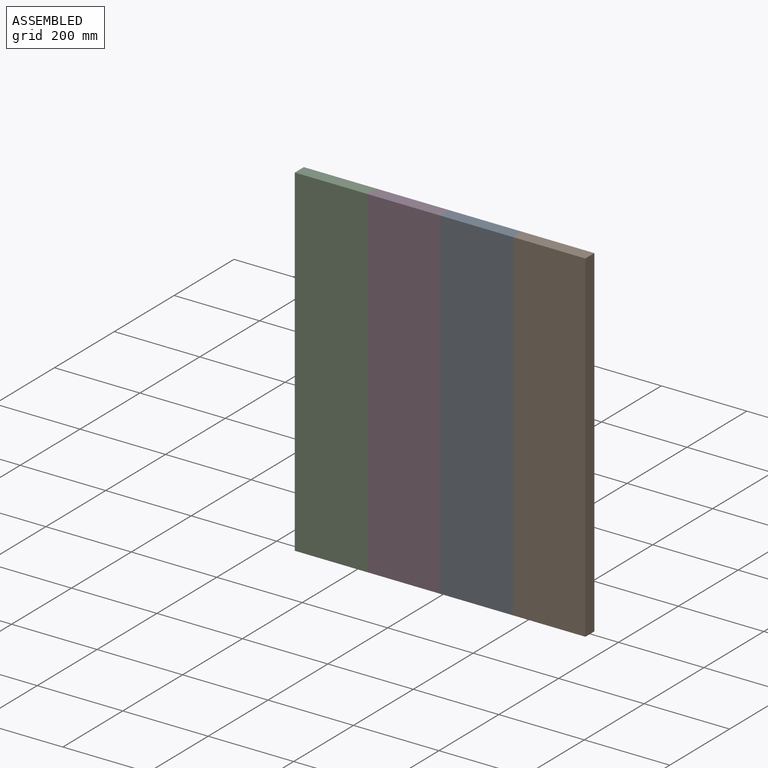
[diagram: assembled view]
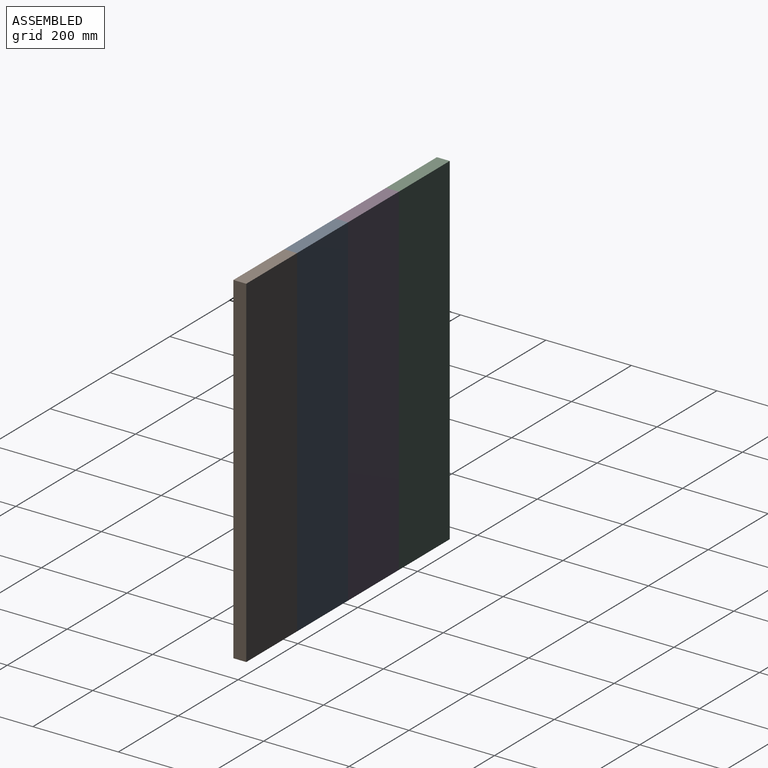
[diagram: assembled view, second angle]
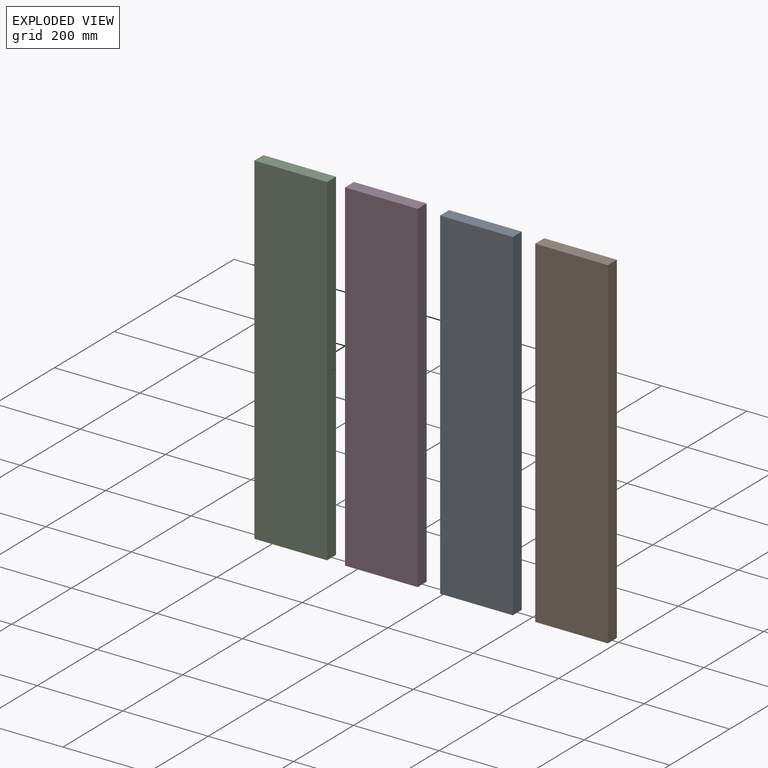
[diagram: exploded view]
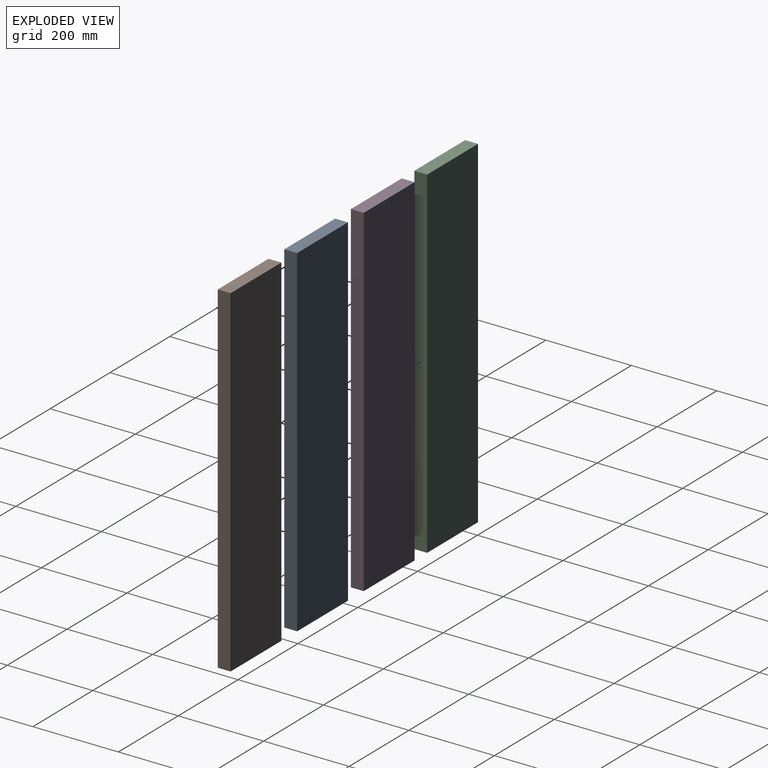
[diagram: exploded view, second angle]
ASSEMBLY  parts=4 mates=3
PART A: 6 faces, bbox 170x30x800 mm
  f0: plane 800x30mm, normal (-1,0,0), area 24000mm2, adj f1,f3,f4,f5
  f1: plane 170x30mm, normal (0,0,-1), area 5100mm2, adj f0,f2,f4,f5
  f2: plane 800x30mm, normal (1,0,0), area 24000mm2, adj f1,f3,f4,f5
  f3: plane 170x30mm, normal (0,0,1), area 5100mm2, adj f0,f2,f4,f5
  f4: plane 800x170mm, normal (0,-1,0), area 136000mm2, adj f0,f1,f2,f3
  f5: plane 800x170mm, normal (0,1,0), area 136000mm2, adj f0,f1,f2,f3
PART B: same geometry as A
PART C: same geometry as A
PART D: same geometry as A
PLACE A rot(axis=(0,1,0),180deg) t=(-301.87,171.43,303.3)mm
PLACE B t=(-131.87,171.43,303.3)mm fixed
PLACE C rot(axis=(0,1,0),180deg) t=(-641.87,171.43,303.3)mm
PLACE D rot(axis=(0,1,0),180deg) t=(-471.87,171.43,303.3)mm
MATE fastened B.f0 <-> A.f0  axis (-1,0,0) through (-216.87,171.43,303.3)mm
MATE fastened A.f2 <-> D.f0  axis (-1,0,0) through (-386.87,171.43,303.3)mm
MATE fastened D.f2 <-> C.f0  axis (-1,0,0) through (-556.87,171.43,303.3)mm
